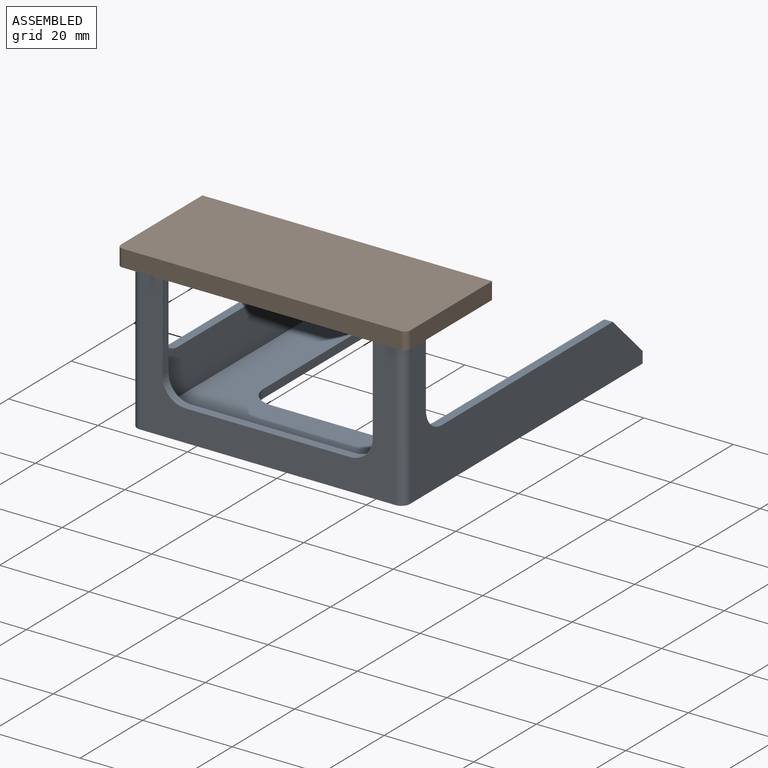
[diagram: assembled view]
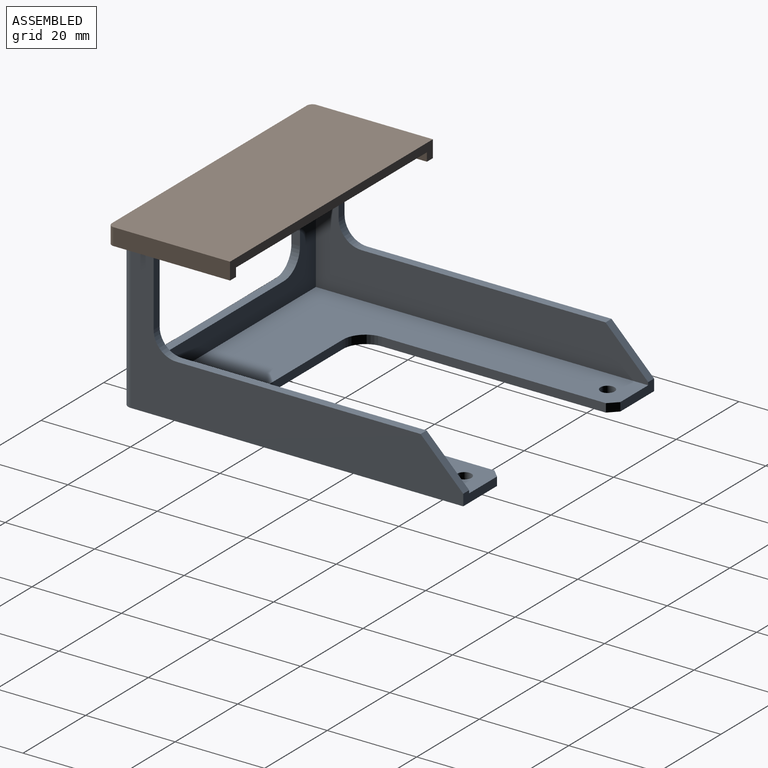
[diagram: assembled view, second angle]
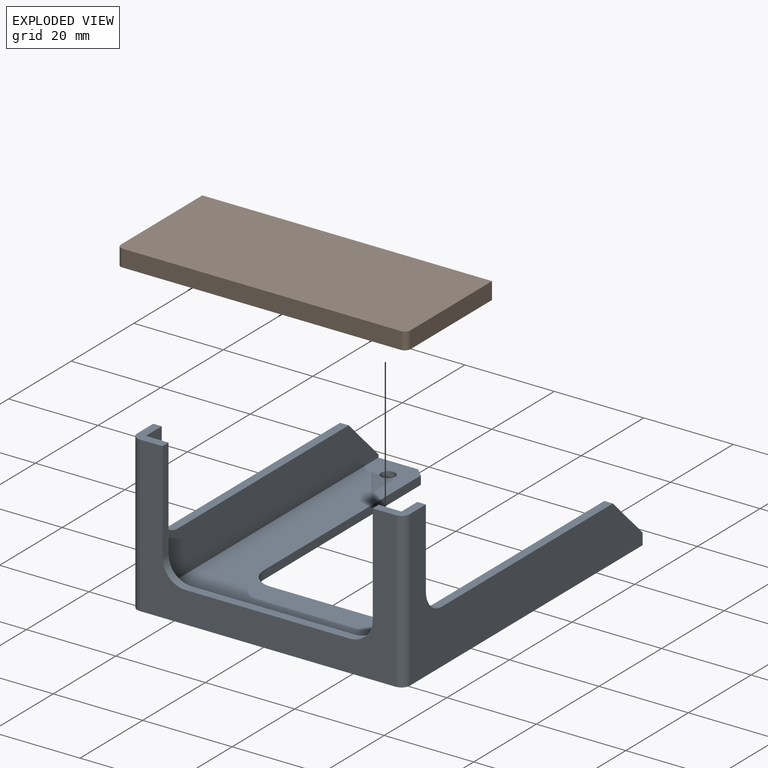
[diagram: exploded view]
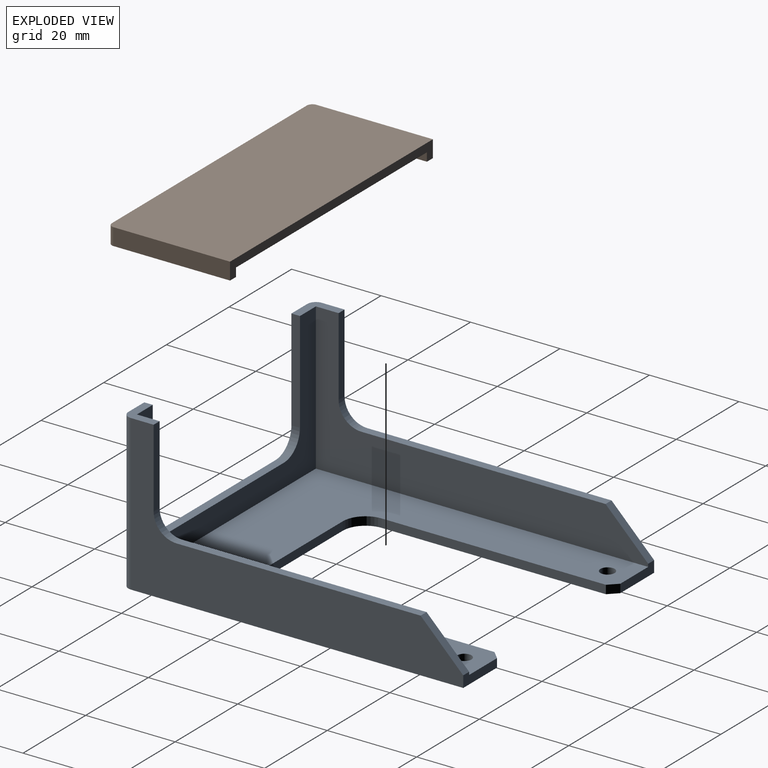
[diagram: exploded view, second angle]
ASSEMBLY  parts=2 mates=3
PART A: 36 faces, bbox 61x76.2x34.7 mm
  f0: plane 6.99x6.99mm, normal (0,0,1), area 22.2mm2, adj f1,f5,f14,f15,f18,f24,f27
  f1: plane 57.15x34.67mm, normal (0,-1,0), area 691.6mm2, adj f0,f2,f13,f17,f18,f25,f26,f27
  f2: plane 6.99x6.99mm, normal (0,0,1), area 22.2mm2, adj f1,f4,f15,f16,f17,f21,f25
  f3: plane 10.8x2.54mm, normal (0,1,0), area 21.8mm2, adj f4,f12,f13,f16,f20,f29
  f4: plane 74.3x34.67mm, normal (-1,0,0), area 971.4mm2, adj f2,f3,f13,f17,f21,f22,f29,f30
  f5: plane 74.3x34.67mm, normal (1,0,0), area 971.4mm2, adj f0,f6,f13,f18,f23,f24,f28,f31
  f6: plane 10.8x2.54mm, normal (0,1,0), area 21.8mm2, adj f5,f12,f13,f14,f19,f28
  f7: plane 50.17x1.91mm, normal (-1,0,0), area 95.6mm2, adj f12,f13,f19,f34
  f8: plane 25.4x1.91mm, normal (0,1,0), area 48.4mm2, adj f12,f13,f34,f35
  f9: cylinder r=1.59mm len=3.18mm, axis (0,0,-1), area 19mm2, adj f12,f13
  f10: plane 50.17x1.91mm, normal (1,0,0), area 95.6mm2, adj f12,f13,f20,f35
  f11: cylinder r=1.59mm len=3.18mm, axis (0,0,-1), area 19mm2, adj f12,f13
  f12: plane 74.3x57.15mm, normal (0,0,1), area 2205.3mm2, adj f3,f6,f7,f8,f9,f10,f11,f14
  f13: plane 76.2x60.96mm, normal (0,0,-1), area 2603mm2, adj f1,f3,f4,f5,f6,f7,f8,f9
  f14: plane 74.3x32.77mm, normal (-1,0,0), area 829.9mm2, adj f0,f6,f12,f15,f23,f24,f28,f31
  f15: plane 57.15x32.77mm, normal (0,1,0), area 582.7mm2, adj f0,f2,f12,f14,f16,f25,f26,f27
  f16: plane 74.3x32.77mm, normal (1,0,0), area 829.9mm2, adj f2,f3,f12,f15,f21,f22,f29,f30
  f17: cylinder r=1.91mm len=34.67mm, axis (0,0,1), area 103.7mm2, adj f1,f2,f4,f13
  f18: cylinder r=1.91mm len=34.67mm, axis (0,0,-1), area 103.7mm2, adj f0,f1,f5,f13
  f19: plane 1.91x1.91mm, normal (-0.71,0.71,0), area 5.1mm2, adj f6,f7,f12,f13
  f20: plane 1.91x1.91mm, normal (0.71,0.71,0), area 5.1mm2, adj f3,f10,f12,f13
  f21: plane 17.53x1.91mm, normal (0,1,0), area 33.4mm2, adj f2,f4,f16,f30
  f22: plane 54.61x1.91mm, normal (0,0,1), area 104mm2, adj f4,f16,f29,f30
  f23: plane 54.61x1.91mm, normal (0,0,1), area 104mm2, adj f5,f14,f28,f31
  f24: plane 17.53x1.91mm, normal (0,1,0), area 33.4mm2, adj f0,f5,f14,f31
  f25: plane 22.61x1.91mm, normal (1,0,0), area 43.1mm2, adj f1,f2,f15,f32
  f26: plane 36.83x1.91mm, normal (0,0,1), area 70.2mm2, adj f1,f15,f32,f33
  f27: plane 22.61x1.91mm, normal (-1,0,0), area 43.1mm2, adj f0,f1,f15,f33
  f28: plane 9.53x9.53mm, normal (0,0.71,0.71), area 25.7mm2, adj f5,f6,f14,f23
  f29: plane 9.53x9.53mm, normal (0,0.71,0.71), area 25.7mm2, adj f3,f4,f16,f22
  f30: cylinder r=5.08mm len=5.08mm, axis (-1,0,0), area 15.2mm2, adj f4,f16,f21,f22
  f31: cylinder r=5.08mm len=5.08mm, axis (-1,0,0), area 15.2mm2, adj f5,f14,f23,f24
  f32: cylinder r=5.08mm len=5.08mm, axis (0,1,0), area 15.2mm2, adj f1,f15,f25,f26
  f33: cylinder r=5.08mm len=5.08mm, axis (0,-1,0), area 15.2mm2, adj f1,f15,f26,f27
  f34: cylinder r=5.08mm len=5.08mm, axis (0,0,-1), area 15.2mm2, adj f7,f8,f12,f13
  f35: cylinder r=5.08mm len=5.08mm, axis (0,0,1), area 15.2mm2, adj f8,f10,f12,f13
PART B: 12 faces, bbox 64.8x27.3x3.8 mm
  f0: plane 64.77x3.81mm, normal (0,1,0), area 130.6mm2, adj f1,f3,f4,f5,f6,f8,f9
  f1: plane 26.04x3.81mm, normal (-1,0,0), area 99.2mm2, adj f0,f5,f9,f10
  f2: plane 62.23x3.81mm, normal (0,-1,0), area 237.1mm2, adj f5,f9,f10,f11
  f3: plane 26.04x3.81mm, normal (1,0,0), area 99.2mm2, adj f0,f5,f9,f11
  f4: plane 60.96x25.4mm, normal (0,0,1), area 1548.4mm2, adj f0,f6,f7,f8
  f5: plane 64.77x27.31mm, normal (0,0,-1), area 1767.9mm2, adj f0,f1,f2,f3,f10,f11
  f6: plane 25.4x1.91mm, normal (-1,0,0), area 48.4mm2, adj f0,f4,f7,f9
  f7: plane 60.96x1.91mm, normal (0,1,0), area 116.1mm2, adj f4,f6,f8,f9
  f8: plane 25.4x1.91mm, normal (1,0,0), area 48.4mm2, adj f0,f4,f7,f9
  f9: plane 64.77x27.31mm, normal (0,0,1), area 219.5mm2, adj f0,f1,f2,f3,f6,f7,f8,f10
  f10: cylinder r=1.27mm len=3.81mm, axis (0,0,1), area 7.6mm2, adj f1,f2,f5,f9
  f11: cylinder r=1.27mm len=3.81mm, axis (0,0,-1), area 7.6mm2, adj f2,f3,f5,f9
PLACE A t=(2.99,-24.36,5.31)mm fixed
PLACE B rot(axis=(0,-1,0),180deg) t=(33.47,-24.36,41.89)mm
MATE planar B.f4 <-> A.f2  axis (0,0,-1) through (2.99,-11.66,39.99)mm
MATE planar A.f5 <-> B.f8  axis (1,0,0) through (33.47,-19.92,39.99)mm
MATE planar A.f1 <-> B.f7  axis (0,-1,0) through (2.99,-24.36,15.93)mm
